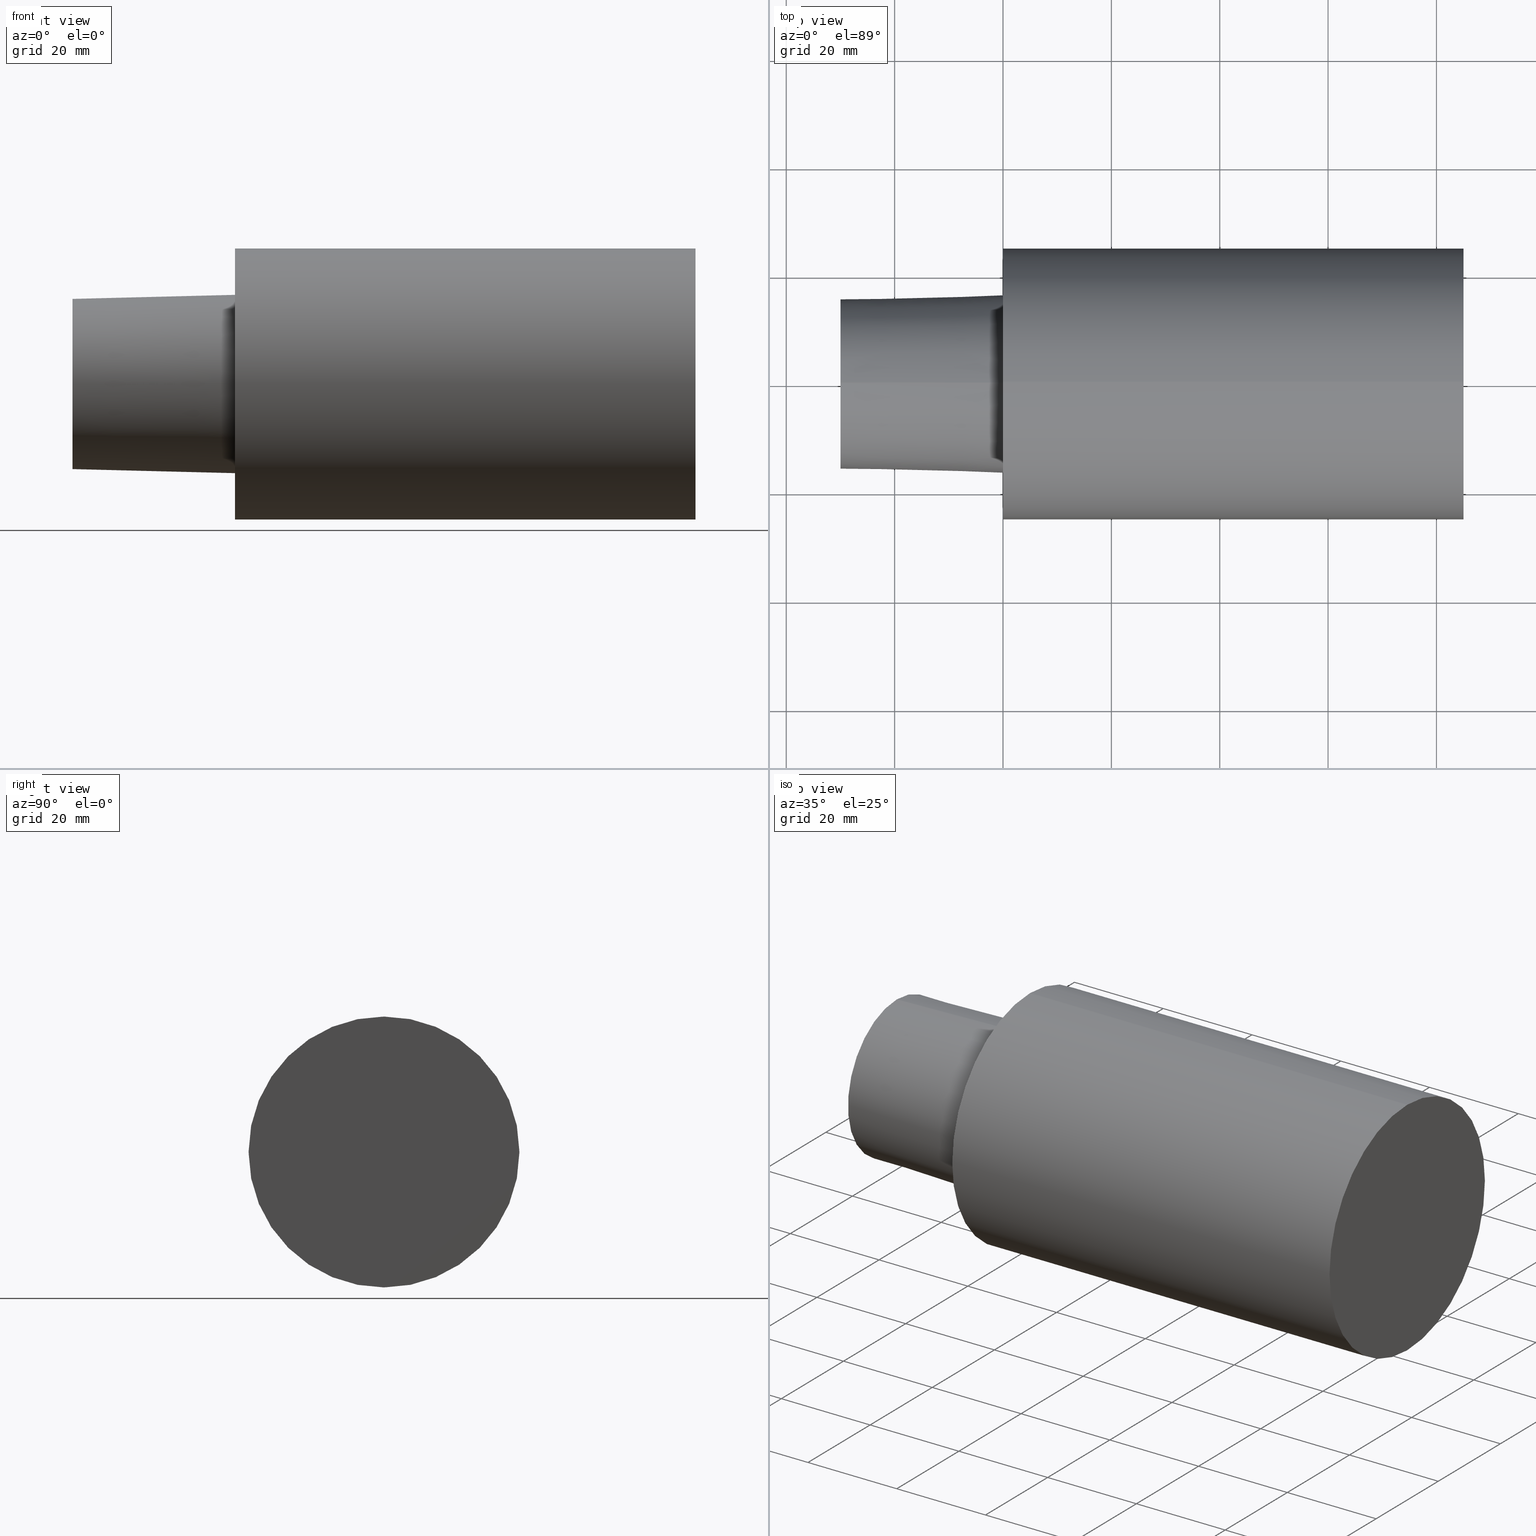
[diagram: canonical four-view strip — front | top / right | iso, engineering-drawing reading convention]
A machine part, canonical four-view strip (front | top / right | iso — engineering-drawing reading convention). The complete STEP part file that produces these views, byte-faithful:
ISO-10303-21;
HEADER;
FILE_DESCRIPTION (( 'STEP AP203' ),
    '1' );
FILE_NAME ('C5-F50-85.stp',
    '2022-03-11T15:27:48',
    ( '' ),
    ( '' ),
    'SwSTEP 2.0',
    'SolidWorks 2021',
    '' );
FILE_SCHEMA (( 'CONFIG_CONTROL_DESIGN' ));
ENDSEC;

DATA;
#1 = APPROVAL_PERSON_ORGANIZATION ( #86, #144, #84 ) ;
#2 = ADVANCED_FACE ( 'NONE', ( #46 ), #39, .T. ) ;
#3 = PERSON ( 'UNSPECIFIED', 'UNSPECIFIED', 'UNSPECIFIED', ('UNSPECIFIED'), ('UNSPECIFIED'), ('UNSPECIFIED') ) ;
#4 =( NAMED_UNIT ( * ) PLANE_ANGLE_UNIT ( ) SI_UNIT ( $, .RADIAN. ) );
#5 = ORGANIZATION ( 'UNSPECIFIED', 'UNSPECIFIED', '' ) ;
#6 = CC_DESIGN_DATE_AND_TIME_ASSIGNMENT ( #108, #81, ( #190 ) ) ;
#7 = AXIS2_PLACEMENT_3D ( 'NONE', #191, #8, #163 ) ;
#8 = DIRECTION ( 'NONE',  ( 1.000000000000000000, 0.000000000000000000, 0.000000000000000000 ) ) ;
#9 = VERTEX_POINT ( 'NONE', #149 ) ;
#10 = ORIENTED_EDGE ( 'NONE', *, *, #240, .F. ) ;
#11 = VERTEX_POINT ( 'NONE', #223 ) ;
#12 = CARTESIAN_POINT ( 'NONE',  ( -29.99999996940000102, 0.000000000000000000, -15.70494056296217700 ) ) ;
#13 = PERSON_AND_ORGANIZATION_ROLE ( 'creator' ) ;
#14 = DIRECTION ( 'NONE',  ( 0.000000000000000000, 0.000000000000000000, 1.000000000000000000 ) ) ;
#15 = CIRCLE ( 'NONE', #253, 16.45500658257258664 ) ;
#16 = LOCAL_TIME ( 9, 27, 48.00000000000000000, #93 ) ;
#17 = DIRECTION ( 'NONE',  ( -1.000000000000000000, 0.000000000000000000, 0.000000000000000000 ) ) ;
#18 = DIRECTION ( 'NONE',  ( 0.000000000000000000, 0.000000000000000000, 1.000000000000000000 ) ) ;
#19 = FACE_OUTER_BOUND ( 'NONE', #49, .T. ) ;
#20 = CIRCLE ( 'NONE', #97, 24.99999997449999967 ) ;
#21 = APPROVAL_STATUS ( 'not_yet_approved' ) ;
#22 = FACE_BOUND ( 'NONE', #133, .T. ) ;
#23 = PERSON_AND_ORGANIZATION_ROLE ( 'creator' ) ;
#24 = ORIENTED_EDGE ( 'NONE', *, *, #80, .F. ) ;
#25 = ORIENTED_EDGE ( 'NONE', *, *, #52, .F. ) ;
#26 = SHAPE_DEFINITION_REPRESENTATION ( #238, #187 ) ;
#27 = ORIENTED_EDGE ( 'NONE', *, *, #121, .F. ) ;
#28 = VECTOR ( 'NONE', #141, 1000.000000000000000 ) ;
#29 = VERTEX_POINT ( 'NONE', #12 ) ;
#30 = APPROVAL ( #34, 'UNSPECIFIED' ) ;
#31 = PERSON_AND_ORGANIZATION_ROLE ( 'design_supplier' ) ;
#32 = VERTEX_POINT ( 'NONE', #221 ) ;
#33 = APPROVAL ( #21, 'UNSPECIFIED' ) ;
#34 = APPROVAL_STATUS ( 'not_yet_approved' ) ;
#35 = PLANE ( 'NONE',  #242 ) ;
#36 = CC_DESIGN_APPROVAL ( #33, ( #225 ) ) ;
#37 = DIRECTION ( 'NONE',  ( 1.000000000000000000, 0.000000000000000000, 0.000000000000000000 ) ) ;
#38 = CARTESIAN_POINT ( 'NONE',  ( 0.000000000000000000, 0.000000000000000000, 0.000000000000000000 ) ) ;
#39 = CONICAL_SURFACE ( 'NONE', #7, 16.45500658257258664, 0.02499699292341668252 ) ;
#40 = CARTESIAN_POINT ( 'NONE',  ( 0.000000000000000000, 2.015157114129614578E-15, 16.45500658257258664 ) ) ;
#41 = CARTESIAN_POINT ( 'NONE',  ( -29.99999996940000102, 15.70494056296217700, 0.000000000000000000 ) ) ;
#42 = PLANE ( 'NONE',  #130 ) ;
#43 =( LENGTH_UNIT ( ) NAMED_UNIT ( * ) SI_UNIT ( .MILLI., .METRE. ) );
#44 = EDGE_CURVE ( 'NONE', #29, #9, #156, .T. ) ;
#45 = COORDINATED_UNIVERSAL_TIME_OFFSET ( 6, 0, .BEHIND. ) ;
#46 = FACE_OUTER_BOUND ( 'NONE', #208, .T. ) ;
#47 = ORIENTED_EDGE ( 'NONE', *, *, #213, .F. ) ;
#48 = LINE ( 'NONE', #129, #112 ) ;
#49 = EDGE_LOOP ( 'NONE', ( #90, #246 ) ) ;
#50 = COORDINATED_UNIVERSAL_TIME_OFFSET ( 6, 0, .BEHIND. ) ;
#51 = ORIENTED_EDGE ( 'NONE', *, *, #52, .T. ) ;
#52 = EDGE_CURVE ( 'NONE', #185, #89, #82, .T. ) ;
#53 = CARTESIAN_POINT ( 'NONE',  ( -29.99999996940000102, 3.061616994745535943E-15, -24.99999997449999967 ) ) ;
#54 = CARTESIAN_POINT ( 'NONE',  ( 84.99999991329998750, 0.000000000000000000, 0.000000000000000000 ) ) ;
#55 = MANIFOLD_SOLID_BREP ( 'Scale1', #124 ) ;
#56 = EDGE_CURVE ( 'NONE', #29, #185, #48, .T. ) ;
#57 = DIRECTION ( 'NONE',  ( -1.000000000000000000, 0.000000000000000000, 0.000000000000000000 ) ) ;
#58 = APPLICATION_PROTOCOL_DEFINITION ( 'international standard', 'config_control_design', 1994, #251 ) ;
#59 = APPROVAL_PERSON_ORGANIZATION ( #220, #30, #207 ) ;
#60 = UNCERTAINTY_MEASURE_WITH_UNIT (LENGTH_MEASURE( 1.000000000000000082E-05 ), #43, 'distance_accuracy_value', 'NONE');
#61 = CC_DESIGN_DATE_AND_TIME_ASSIGNMENT ( #226, #147, ( #102 ) ) ;
#62 = DIRECTION ( 'NONE',  ( 0.000000000000000000, 0.000000000000000000, 1.000000000000000000 ) ) ;
#63 = CIRCLE ( 'NONE', #192, 24.99999997449999967 ) ;
#64 = COORDINATED_UNIVERSAL_TIME_OFFSET ( 6, 0, .BEHIND. ) ;
#65 = CIRCLE ( 'NONE', #164, 15.70494056296217700 ) ;
#66 = EDGE_LOOP ( 'NONE', ( #27, #109 ) ) ;
#67 = PERSON_AND_ORGANIZATION ( #3, #5 ) ;
#68 = DIRECTION ( 'NONE',  ( 0.000000000000000000, 0.000000000000000000, 1.000000000000000000 ) ) ;
#69 = ORIENTED_EDGE ( 'NONE', *, *, #213, .T. ) ;
#70 = APPROVAL_DATE_TIME ( #165, #33 ) ;
#71 = VERTEX_POINT ( 'NONE', #166 ) ;
#72 = ORIENTED_EDGE ( 'NONE', *, *, #117, .F. ) ;
#73 = CARTESIAN_POINT ( 'NONE',  ( -29.99999996940000102, 0.000000000000000000, 0.000000000000000000 ) ) ;
#74 = LOCAL_TIME ( 9, 27, 48.00000000000000000, #50 ) ;
#75 = DIRECTION ( 'NONE',  ( 0.000000000000000000, 0.000000000000000000, 1.000000000000000000 ) ) ;
#76 = CIRCLE ( 'NONE', #140, 24.99999997449999967 ) ;
#77 = EDGE_CURVE ( 'NONE', #202, #71, #142, .T. ) ;
#78 = CARTESIAN_POINT ( 'NONE',  ( 0.000000000000000000, 0.000000000000000000, 0.000000000000000000 ) ) ;
#79 = CARTESIAN_POINT ( 'NONE',  ( 84.99999991329998750, 0.000000000000000000, 0.000000000000000000 ) ) ;
#80 = EDGE_CURVE ( 'NONE', #89, #185, #15, .T. ) ;
#81 = DATE_TIME_ROLE ( 'creation_date' ) ;
#82 = CIRCLE ( 'NONE', #189, 16.45500658257258664 ) ;
#83 = CARTESIAN_POINT ( 'NONE',  ( 0.000000000000000000, 0.000000000000000000, 0.000000000000000000 ) ) ;
#84 = APPROVAL_ROLE ( '' ) ;
#85 = DIRECTION ( 'NONE',  ( 0.000000000000000000, 0.000000000000000000, 1.000000000000000000 ) ) ;
#86 = PERSON_AND_ORGANIZATION ( #3, #5 ) ;
#87 = AXIS2_PLACEMENT_3D ( 'NONE', #38, #211, #75 ) ;
#88 = EDGE_LOOP ( 'NONE', ( #245, #227, #153, #219 ) ) ;
#89 = VERTEX_POINT ( 'NONE', #40 ) ;
#90 = ORIENTED_EDGE ( 'NONE', *, *, #95, .T. ) ;
#91 = EDGE_LOOP ( 'NONE', ( #150, #69, #152, #10 ) ) ;
#92 = LOCAL_TIME ( 9, 27, 48.00000000000000000, #45 ) ;
#93 = COORDINATED_UNIVERSAL_TIME_OFFSET ( 6, 0, .BEHIND. ) ;
#94 = FACE_OUTER_BOUND ( 'NONE', #182, .T. ) ;
#95 = EDGE_CURVE ( 'NONE', #71, #202, #63, .T. ) ;
#96 = DIRECTION ( 'NONE',  ( 0.9996875914402667540, 3.060929943787468651E-18, 0.02499438977767799372 ) ) ;
#97 = AXIS2_PLACEMENT_3D ( 'NONE', #79, #232, #196 ) ;
#98 = DIRECTION ( 'NONE',  ( -1.000000000000000000, 0.000000000000000000, 0.000000000000000000 ) ) ;
#99 = CC_DESIGN_PERSON_AND_ORGANIZATION_ASSIGNMENT ( #126, #23, ( #190 ) ) ;
#100 = CARTESIAN_POINT ( 'NONE',  ( 0.000000000000000000, 0.000000000000000000, -16.45500658257258664 ) ) ;
#101 = AXIS2_PLACEMENT_3D ( 'NONE', #212, #17, #215 ) ;
#102 = SECURITY_CLASSIFICATION ( '', '', #186 ) ;
#103 = APPROVAL_ROLE ( '' ) ;
#104 = DIRECTION ( 'NONE',  ( 0.000000000000000000, 1.000000000000000000, 0.000000000000000000 ) ) ;
#105 = PERSON_AND_ORGANIZATION ( #3, #5 ) ;
#106 = ADVANCED_FACE ( 'NONE', ( #173 ), #250, .T. ) ;
#107 = COORDINATED_UNIVERSAL_TIME_OFFSET ( 6, 0, .BEHIND. ) ;
#108 = DATE_AND_TIME ( #181, #206 ) ;
#109 = ORIENTED_EDGE ( 'NONE', *, *, #234, .F. ) ;
#110 = ORIENTED_EDGE ( 'NONE', *, *, #77, .F. ) ;
#111 = ORIENTED_EDGE ( 'NONE', *, *, #176, .T. ) ;
#112 = VECTOR ( 'NONE', #205, 999.9999999999998863 ) ;
#113 = PERSON_AND_ORGANIZATION ( #3, #5 ) ;
#114 = AXIS2_PLACEMENT_3D ( 'NONE', #231, #118, #119 ) ;
#115 = CARTESIAN_POINT ( 'NONE',  ( 0.000000000000000000, 0.000000000000000000, 0.000000000000000000 ) ) ;
#116 = LOCAL_TIME ( 9, 27, 48.00000000000000000, #64 ) ;
#117 = EDGE_CURVE ( 'NONE', #9, #89, #195, .T. ) ;
#118 = DIRECTION ( 'NONE',  ( 1.000000000000000000, 0.000000000000000000, 0.000000000000000000 ) ) ;
#119 = DIRECTION ( 'NONE',  ( 0.000000000000000000, 0.000000000000000000, -1.000000000000000000 ) ) ;
#120 = CARTESIAN_POINT ( 'NONE',  ( 0.000000000000000000, 2.015157114129614578E-15, 16.45500658257258664 ) ) ;
#121 = EDGE_CURVE ( 'NONE', #32, #11, #20, .T. ) ;
#122 = PLANE ( 'NONE',  #200 ) ;
#123 = CARTESIAN_POINT ( 'NONE',  ( 0.000000000000000000, 24.99999997449999967, 0.000000000000000000 ) ) ;
#124 = CLOSED_SHELL ( 'NONE', ( #168, #2, #252, #233, #198, #138, #106 ) ) ;
#125 = CC_DESIGN_PERSON_AND_ORGANIZATION_ASSIGNMENT ( #113, #31, ( #225 ) ) ;
#126 = PERSON_AND_ORGANIZATION ( #3, #5 ) ;
#127 = ORIENTED_EDGE ( 'NONE', *, *, #234, .T. ) ;
#128 = DIRECTION ( 'NONE',  ( 0.000000000000000000, 0.000000000000000000, 1.000000000000000000 ) ) ;
#129 = CARTESIAN_POINT ( 'NONE',  ( 0.000000000000000000, 0.000000000000000000, -16.45500658257258664 ) ) ;
#130 = AXIS2_PLACEMENT_3D ( 'NONE', #123, #217, #104 ) ;
#131 = ORIENTED_EDGE ( 'NONE', *, *, #44, .T. ) ;
#132 = APPROVAL_DATE_TIME ( #151, #30 ) ;
#133 = EDGE_LOOP ( 'NONE', ( #25, #24 ) ) ;
#134 = DIRECTION ( 'NONE',  ( -1.000000000000000000, 0.000000000000000000, 0.000000000000000000 ) ) ;
#135 = FACE_OUTER_BOUND ( 'NONE', #169, .T. ) ;
#136 = FACE_OUTER_BOUND ( 'NONE', #91, .T. ) ;
#137 = CALENDAR_DATE ( 2022, 11, 3 ) ;
#138 = ADVANCED_FACE ( 'NONE', ( #136 ), #158, .T. ) ;
#139 = MECHANICAL_CONTEXT ( 'NONE', #179, 'mechanical' ) ;
#140 = AXIS2_PLACEMENT_3D ( 'NONE', #54, #216, #85 ) ;
#141 = DIRECTION ( 'NONE',  ( -1.000000000000000000, 0.000000000000000000, 0.000000000000000000 ) ) ;
#142 = CIRCLE ( 'NONE', #87, 24.99999997449999967 ) ;
#143 = LINE ( 'NONE', #177, #28 ) ;
#144 = APPROVAL ( #180, 'UNSPECIFIED' ) ;
#145 = CC_DESIGN_PERSON_AND_ORGANIZATION_ASSIGNMENT ( #67, #184, ( #102 ) ) ;
#146 = VECTOR ( 'NONE', #96, 999.9999999999998863 ) ;
#147 = DATE_TIME_ROLE ( 'classification_date' ) ;
#148 = AXIS2_PLACEMENT_3D ( 'NONE', #83, #62, #160 ) ;
#149 = CARTESIAN_POINT ( 'NONE',  ( -29.99999996940000102, 1.969228816626358703E-15, 15.70494056296217700 ) ) ;
#150 = ORIENTED_EDGE ( 'NONE', *, *, #121, .T. ) ;
#151 = DATE_AND_TIME ( #244, #74 ) ;
#152 = ORIENTED_EDGE ( 'NONE', *, *, #95, .F. ) ;
#153 = ORIENTED_EDGE ( 'NONE', *, *, #80, .T. ) ;
#154 = LINE ( 'NONE', #53, #230 ) ;
#155 = DIRECTION ( 'NONE',  ( -1.000000000000000000, 0.000000000000000000, 0.000000000000000000 ) ) ;
#156 = CIRCLE ( 'NONE', #174, 15.70494056296217700 ) ;
#157 = PRODUCT_RELATED_PRODUCT_CATEGORY ( 'detail', '', ( #218 ) ) ;
#158 = CYLINDRICAL_SURFACE ( 'NONE', #101, 24.99999997449999967 ) ;
#159 = APPROVAL_PERSON_ORGANIZATION ( #199, #33, #103 ) ;
#160 = DIRECTION ( 'NONE',  ( 1.000000000000000000, 0.000000000000000000, 0.000000000000000000 ) ) ;
#161 = CC_DESIGN_APPROVAL ( #30, ( #102 ) ) ;
#162 = APPLICATION_PROTOCOL_DEFINITION ( 'international standard', 'config_control_design', 1994, #179 ) ;
#163 = DIRECTION ( 'NONE',  ( 0.000000000000000000, 0.000000000000000000, -1.000000000000000000 ) ) ;
#164 = AXIS2_PLACEMENT_3D ( 'NONE', #249, #98, #18 ) ;
#165 = DATE_AND_TIME ( #203, #116 ) ;
#166 = CARTESIAN_POINT ( 'NONE',  ( 0.000000000000000000, 0.000000000000000000, 24.99999997449999967 ) ) ;
#167 = ORIENTED_EDGE ( 'NONE', *, *, #240, .T. ) ;
#168 = ADVANCED_FACE ( 'NONE', ( #135 ), #35, .F. ) ;
#169 = EDGE_LOOP ( 'NONE', ( #131, #111 ) ) ;
#170 = CYLINDRICAL_SURFACE ( 'NONE', #235, 24.99999997449999967 ) ;
#171 = DIRECTION ( 'NONE',  ( 0.000000000000000000, 0.000000000000000000, 1.000000000000000000 ) ) ;
#172 =( GEOMETRIC_REPRESENTATION_CONTEXT ( 3 ) GLOBAL_UNCERTAINTY_ASSIGNED_CONTEXT ( ( #60 ) ) GLOBAL_UNIT_ASSIGNED_CONTEXT ( ( #43, #4, #236 ) ) REPRESENTATION_CONTEXT ( 'NONE', 'WORKASPACE' ) );
#173 = FACE_OUTER_BOUND ( 'NONE', #88, .T. ) ;
#174 = AXIS2_PLACEMENT_3D ( 'NONE', #248, #204, #128 ) ;
#175 = CARTESIAN_POINT ( 'NONE',  ( 84.99999991329998750, 0.000000000000000000, 0.000000000000000000 ) ) ;
#176 = EDGE_CURVE ( 'NONE', #9, #29, #65, .T. ) ;
#177 = CARTESIAN_POINT ( 'NONE',  ( -29.99999996940000102, 0.000000000000000000, 24.99999997449999967 ) ) ;
#178 = PERSON_AND_ORGANIZATION_ROLE ( 'design_owner' ) ;
#179 = APPLICATION_CONTEXT ( 'configuration controlled 3d designs of mechanical parts and assemblies' ) ;
#180 = APPROVAL_STATUS ( 'not_yet_approved' ) ;
#181 = CALENDAR_DATE ( 2022, 11, 3 ) ;
#182 = EDGE_LOOP ( 'NONE', ( #47, #127, #167, #110 ) ) ;
#183 = CARTESIAN_POINT ( 'NONE',  ( 0.000000000000000000, 0.000000000000000000, 0.000000000000000000 ) ) ;
#184 = PERSON_AND_ORGANIZATION_ROLE ( 'classification_officer' ) ;
#185 = VERTEX_POINT ( 'NONE', #100 ) ;
#186 = SECURITY_CLASSIFICATION_LEVEL ( 'unclassified' ) ;
#187 = ADVANCED_BREP_SHAPE_REPRESENTATION ( 'C5-F50-85', ( #55, #148 ), #172 ) ;
#188 = ORIENTED_EDGE ( 'NONE', *, *, #44, .F. ) ;
#189 = AXIS2_PLACEMENT_3D ( 'NONE', #183, #243, #68 ) ;
#190 = PRODUCT_DEFINITION ( 'UNKNOWN', '', #225, #255 ) ;
#191 = CARTESIAN_POINT ( 'NONE',  ( 0.000000000000000000, 0.000000000000000000, 0.000000000000000000 ) ) ;
#192 = AXIS2_PLACEMENT_3D ( 'NONE', #115, #228, #197 ) ;
#193 = DIRECTION ( 'NONE',  ( 0.000000000000000000, 1.000000000000000000, 0.000000000000000000 ) ) ;
#194 = DIRECTION ( 'NONE',  ( -1.000000000000000000, 0.000000000000000000, 0.000000000000000000 ) ) ;
#195 = LINE ( 'NONE', #120, #146 ) ;
#196 = DIRECTION ( 'NONE',  ( 0.000000000000000000, 0.000000000000000000, 1.000000000000000000 ) ) ;
#197 = DIRECTION ( 'NONE',  ( 0.000000000000000000, 0.000000000000000000, 1.000000000000000000 ) ) ;
#198 = ADVANCED_FACE ( 'NONE', ( #214 ), #122, .F. ) ;
#199 = PERSON_AND_ORGANIZATION ( #3, #5 ) ;
#200 = AXIS2_PLACEMENT_3D ( 'NONE', #175, #194, #14 ) ;
#201 = CC_DESIGN_PERSON_AND_ORGANIZATION_ASSIGNMENT ( #210, #13, ( #225 ) ) ;
#202 = VERTEX_POINT ( 'NONE', #254 ) ;
#203 = CALENDAR_DATE ( 2022, 11, 3 ) ;
#204 = DIRECTION ( 'NONE',  ( -1.000000000000000000, 0.000000000000000000, 0.000000000000000000 ) ) ;
#205 = DIRECTION ( 'NONE',  ( 0.9996875914402667540, 0.000000000000000000, -0.02499438977767799372 ) ) ;
#206 = LOCAL_TIME ( 9, 27, 48.00000000000000000, #107 ) ;
#207 = APPROVAL_ROLE ( '' ) ;
#208 = EDGE_LOOP ( 'NONE', ( #72, #188, #241, #51 ) ) ;
#209 = CC_DESIGN_PERSON_AND_ORGANIZATION_ASSIGNMENT ( #105, #178, ( #218 ) ) ;
#210 = PERSON_AND_ORGANIZATION ( #3, #5 ) ;
#211 = DIRECTION ( 'NONE',  ( -1.000000000000000000, 0.000000000000000000, 0.000000000000000000 ) ) ;
#212 = CARTESIAN_POINT ( 'NONE',  ( -29.99999996940000102, 0.000000000000000000, 0.000000000000000000 ) ) ;
#213 = EDGE_CURVE ( 'NONE', #11, #202, #154, .T. ) ;
#214 = FACE_OUTER_BOUND ( 'NONE', #66, .T. ) ;
#215 = DIRECTION ( 'NONE',  ( 0.000000000000000000, 0.000000000000000000, 1.000000000000000000 ) ) ;
#216 = DIRECTION ( 'NONE',  ( -1.000000000000000000, 0.000000000000000000, 0.000000000000000000 ) ) ;
#217 = DIRECTION ( 'NONE',  ( 1.000000000000000000, 0.000000000000000000, 0.000000000000000000 ) ) ;
#218 = PRODUCT ( 'C5-F50-85', 'C5-F50-85', '', ( #139 ) ) ;
#219 = ORIENTED_EDGE ( 'NONE', *, *, #56, .F. ) ;
#220 = PERSON_AND_ORGANIZATION ( #3, #5 ) ;
#221 = CARTESIAN_POINT ( 'NONE',  ( 84.99999991329998750, 0.000000000000000000, 24.99999997449999967 ) ) ;
#222 = CALENDAR_DATE ( 2022, 11, 3 ) ;
#223 = CARTESIAN_POINT ( 'NONE',  ( 84.99999991329998750, 3.061616994745535943E-15, -24.99999997449999967 ) ) ;
#224 = CC_DESIGN_SECURITY_CLASSIFICATION ( #102, ( #225 ) ) ;
#225 = PRODUCT_DEFINITION_FORMATION_WITH_SPECIFIED_SOURCE ( 'ANY', '', #218, .NOT_KNOWN. ) ;
#226 = DATE_AND_TIME ( #222, #16 ) ;
#227 = ORIENTED_EDGE ( 'NONE', *, *, #117, .T. ) ;
#228 = DIRECTION ( 'NONE',  ( -1.000000000000000000, 0.000000000000000000, 0.000000000000000000 ) ) ;
#229 = DIRECTION ( 'NONE',  ( 0.000000000000000000, 0.000000000000000000, 1.000000000000000000 ) ) ;
#230 = VECTOR ( 'NONE', #134, 1000.000000000000000 ) ;
#231 = CARTESIAN_POINT ( 'NONE',  ( 0.000000000000000000, 0.000000000000000000, 0.000000000000000000 ) ) ;
#232 = DIRECTION ( 'NONE',  ( -1.000000000000000000, 0.000000000000000000, 0.000000000000000000 ) ) ;
#233 = ADVANCED_FACE ( 'NONE', ( #94 ), #170, .T. ) ;
#234 = EDGE_CURVE ( 'NONE', #11, #32, #76, .T. ) ;
#235 = AXIS2_PLACEMENT_3D ( 'NONE', #73, #155, #229 ) ;
#236 =( NAMED_UNIT ( * ) SI_UNIT ( $, .STERADIAN. ) SOLID_ANGLE_UNIT ( ) );
#237 = APPROVAL_DATE_TIME ( #239, #144 ) ;
#238 = PRODUCT_DEFINITION_SHAPE ( 'NONE', 'NONE',  #190 ) ;
#239 = DATE_AND_TIME ( #137, #92 ) ;
#240 = EDGE_CURVE ( 'NONE', #32, #71, #143, .T. ) ;
#241 = ORIENTED_EDGE ( 'NONE', *, *, #56, .T. ) ;
#242 = AXIS2_PLACEMENT_3D ( 'NONE', #41, #37, #193 ) ;
#243 = DIRECTION ( 'NONE',  ( -1.000000000000000000, 0.000000000000000000, 0.000000000000000000 ) ) ;
#244 = CALENDAR_DATE ( 2022, 11, 3 ) ;
#245 = ORIENTED_EDGE ( 'NONE', *, *, #176, .F. ) ;
#246 = ORIENTED_EDGE ( 'NONE', *, *, #77, .T. ) ;
#247 = CC_DESIGN_APPROVAL ( #144, ( #190 ) ) ;
#248 = CARTESIAN_POINT ( 'NONE',  ( -29.99999996940000102, 0.000000000000000000, 0.000000000000000000 ) ) ;
#249 = CARTESIAN_POINT ( 'NONE',  ( -29.99999996940000102, 0.000000000000000000, 0.000000000000000000 ) ) ;
#250 = CONICAL_SURFACE ( 'NONE', #114, 16.45500658257258664, 0.02499699292341668252 ) ;
#251 = APPLICATION_CONTEXT ( 'configuration controlled 3d designs of mechanical parts and assemblies' ) ;
#252 = ADVANCED_FACE ( 'NONE', ( #22, #19 ), #42, .F. ) ;
#253 = AXIS2_PLACEMENT_3D ( 'NONE', #78, #57, #171 ) ;
#254 = CARTESIAN_POINT ( 'NONE',  ( 0.000000000000000000, 3.061616994745535943E-15, -24.99999997449999967 ) ) ;
#255 = DESIGN_CONTEXT ( 'detailed design', #251, 'design' ) ;
ENDSEC;
END-ISO-10303-21;
